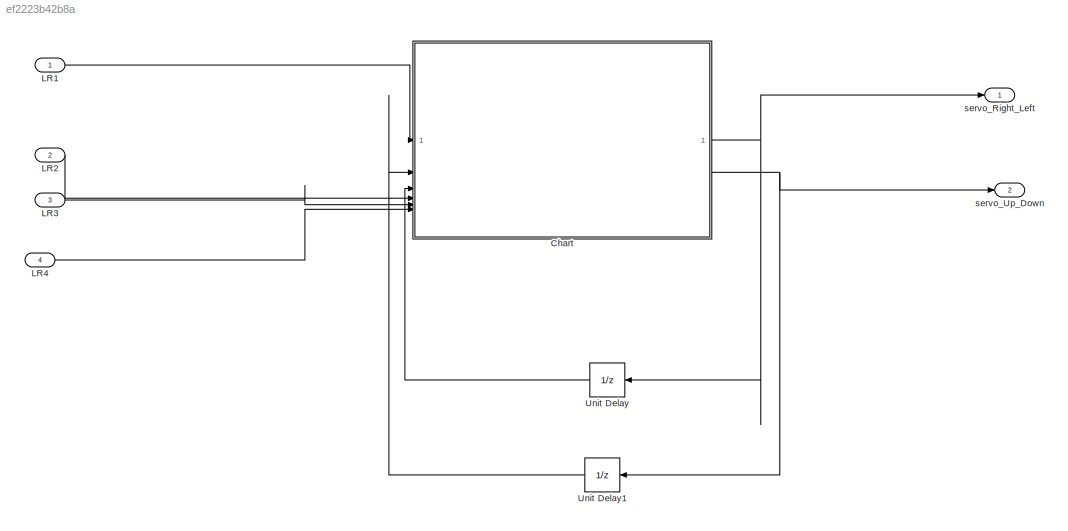
MODEL slx_ef2223b42b8a
KIND model
CONFIG AbsTol = auto
CONFIG EnableMultiTasking = on
CONFIG FixedStep = 1
CONFIG MaxStep = auto
CONFIG MinStep = auto
CONFIG RelTol = 1e-3
CONFIG SampleTimeConstraint = Unconstrained
CONFIG SolverName = FixedStepAuto
CONFIG StartTime = 0.0
CONFIG StopTime = inf
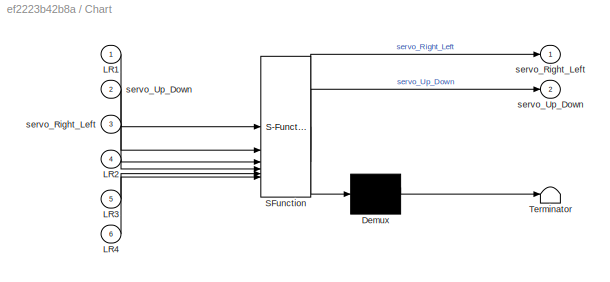
BLOCK [SubSystem] Chart
  ErrorFcn = Stateflow.Translate.translate
  PermitHierarchicalResolution = ExplicitOnly
  SFBlockType = Chart
  TreatAsAtomicUnit = on
BLOCK [Demux] Chart/ Demux 
  Outputs = 1
BLOCK [S-Function] Chart/ SFunction 
  EnableBusSupport = on
  FunctionName = sf_sfun
  PortCounts = [6 3]
  SFcnIsStateOwnerBlock = off
  SFunctionDeploymentMode = off
  Tag = Stateflow S-Function 3
BLOCK [Terminator] Chart/ Terminator 
BLOCK [Inport] Chart/LR1
BLOCK [Inport] Chart/LR2
  Port = 4
BLOCK [Inport] Chart/LR3
  Port = 5
BLOCK [Inport] Chart/LR4
  Port = 6
BLOCK [Outport] Chart/servo_Right_Left
BLOCK [Inport] Chart/servo_Right_Left 
  Port = 3
BLOCK [Outport] Chart/servo_Up_Down
  Port = 2
BLOCK [Inport] Chart/servo_Up_Down 
  Port = 2
BLOCK [Inport] LR1
BLOCK [Inport] LR2
  Port = 2
BLOCK [Inport] LR3
  Port = 3
BLOCK [Inport] LR4
  Port = 4
BLOCK [UnitDelay] Unit Delay
  HasFrameUpgradeWarning = on
  SampleTime = -1
BLOCK [UnitDelay] Unit Delay1
  HasFrameUpgradeWarning = on
  SampleTime = -1
BLOCK [Outport] servo_Right_Left
BLOCK [Outport] servo_Up_Down
  Port = 2
NET Chart:1 -> Unit Delay:1, servo_Right_Left:1
NET Chart:2 -> Unit Delay1:1, servo_Up_Down:1
LINE LR1:1 -> Chart:1
LINE LR2:1 -> Chart:4
LINE LR3:1 -> Chart:5
LINE LR4:1 -> Chart:6
LINE Unit Delay1:1 -> Chart:2
LINE Unit Delay:1 -> Chart:3
note: NET lines group one-source signal fan-out (src -> all destinations, sorted); 1:1 wires keep LINE
CHART Chart states=11 transitions=47
  STATE_LABEL 'mode'
  STATE_LABEL 'mode_up\n\n'
  STATE_LABEL '{Servo_Angle(0);}'
  STATE_LABEL '{Servo_Angle_up(90);}'
  STATE_LABEL 'mode_down\n\n'
  STATE_LABEL '{Servo_Angle(0);}\n'
  STATE_LABEL '{Servo_Angle_up(-90);}'
  STATE_LABEL 'mode_Right\n'
  STATE_LABEL '{Servo_Angle(90);}'
  STATE_LABEL '{Servo_Angle_up(0);}'
  STATE_LABEL 'mode_Left\n'
  STATE_LABEL '{Servo_Angle(-90);}'
  STATE_LABEL '{Servo_Angle_up(0);}'
  STATE_LABEL 'mode_Right_Up'
  STATE_LABEL '{Servo_Angle(45);}'
  STATE_LABEL '{Servo_Angle_up(45);}'
  STATE_LABEL 'mode_Right_Down\n'
  STATE_LABEL '{Servo_Angle(45);}'
  STATE_LABEL '{Servo_Angle_up(-45);}'
  STATE_LABEL 'mode_Left_Down'
  STATE_LABEL '{Servo_Angle(-45);}'
  STATE_LABEL '{Servo_Angle_up(-45);}'
  STATE_LABEL 'mode_Left_Up'
  STATE_LABEL '{Servo_Angle(-45);}'
  STATE_LABEL '{Servo_Angle_up(45);}'
  STATE_LABEL '[((LR1+LR2 )/2 >(LR3+LR4)/2) &&((LR1+LR4)/2 == (LR2+LR3)/2)]'
  STATE_LABEL '[((LR1+LR2 )/2 <(LR3+LR4)/2) &&((LR1+LR4)/2 == (LR2+LR3)/2)]'
  STATE_LABEL '[((LR1+LR2 )/2 == (LR3+LR4)/2) &&((LR1+LR4)/2 < (LR2+LR3)/2)]'
  STATE_LABEL '[((LR1+LR2 )/2 == (LR3+LR4)/2) &&((LR1+LR4)/2 > (LR2+LR3)/2)]'
  STATE_LABEL '[((LR1+LR2 )/2 >(LR3+LR4)/2) &&((LR1+LR4)/2 < (LR2+LR3)/2)]'
  STATE_LABEL '[((LR1+LR2 )/2  < (LR3+LR4)/2) &&((LR1+LR4)/2 < (LR2+LR3)/2)]'
  STATE_LABEL '[((LR1+LR2 )/2  < (LR3+LR4)/2) &&((LR1+LR4)/2 > (LR2+LR3)/2)]'
  STATE_LABEL '[((LR1+LR2 )/2 >(LR3+LR4)/2) &&((LR1+LR4)/2 > (LR2+LR3)/2)]'
  STATE_LABEL 'mode_up\n\n'
  STATE_LABEL '{Servo_Angle(0);}'
  STATE_LABEL '{Servo_Angle_up(90);}'
  STATE_LABEL 'mode_down\n\n'
  STATE_LABEL '{Servo_Angle(0);}\n'
  STATE_LABEL '{Servo_Angle_up(-90);}'
  STATE_LABEL 'mode_Right\n'
CHART  states=0 transitions=0
